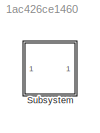
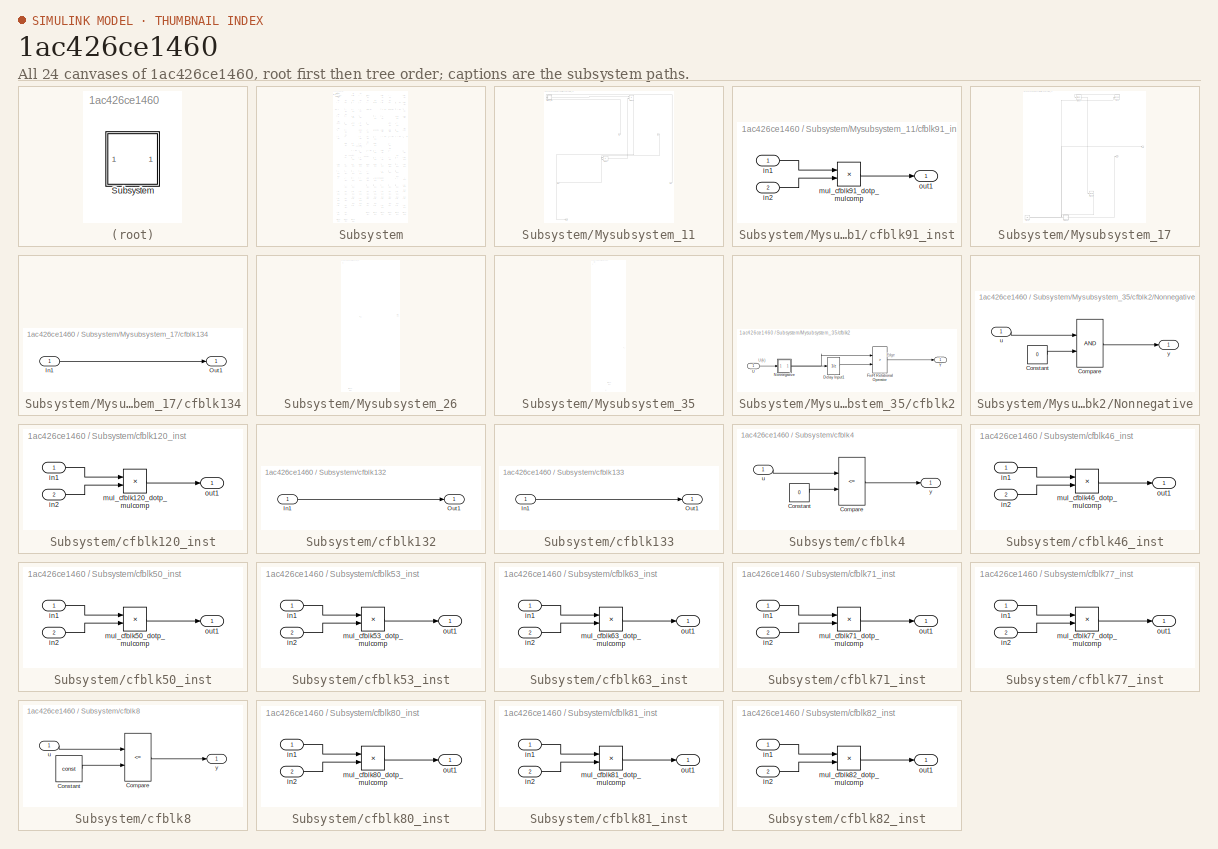
[diagram: thumbnail index - all 24 canvases of the model, root first then tree order]
MODEL slx_1ac426ce1460
KIND model
CONFIG AbsTol = auto
CONFIG EnableMultiTasking = off
CONFIG FixedStep = auto
CONFIG MaxStep = auto
CONFIG MinStep = auto
CONFIG RelTol = 1e-3
CONFIG SampleTimeConstraint = Unconstrained
CONFIG SolverName = VariableStepAuto
CONFIG StartTime = 0.0
CONFIG StopTime = 10.0
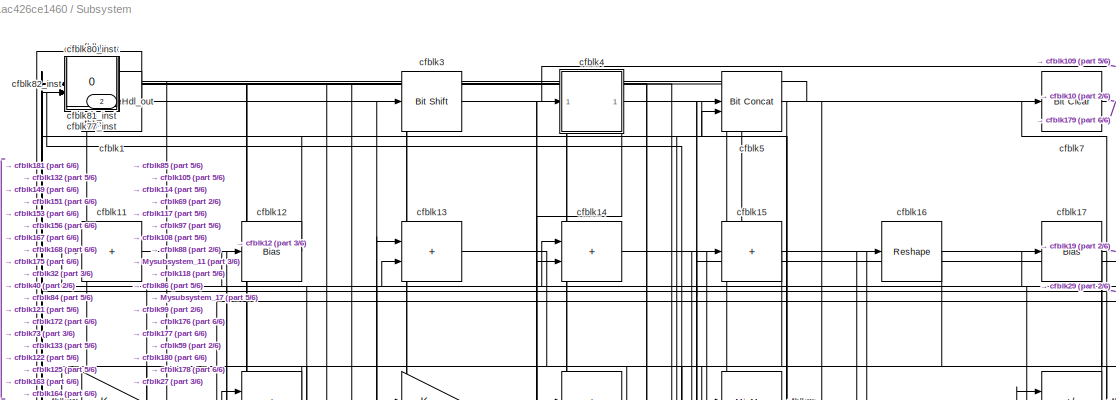
[diagram: Subsystem - part 1/6, top center region]
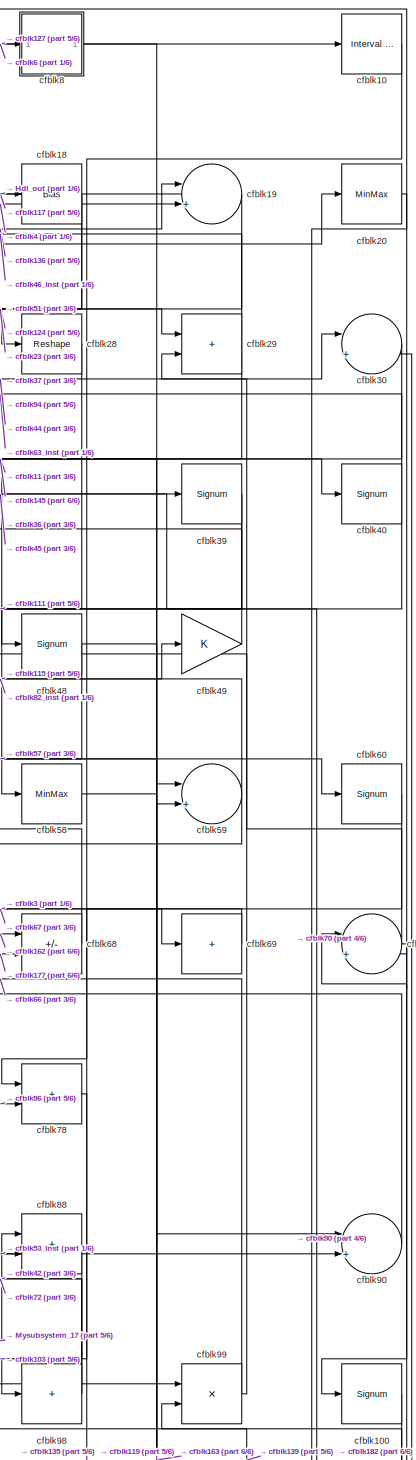
[diagram: Subsystem - part 2/6, top right region]
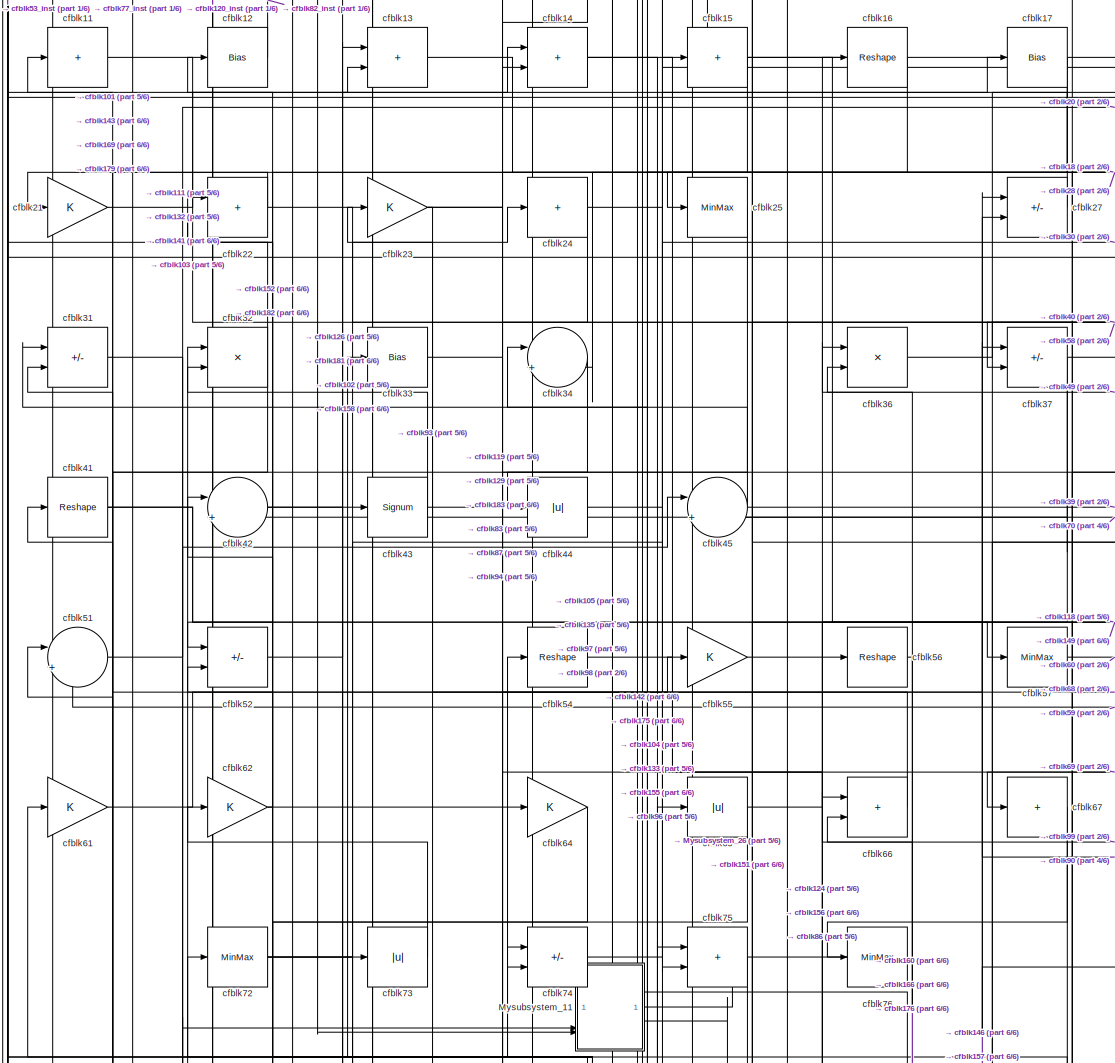
[diagram: Subsystem - part 3/6, top center region]
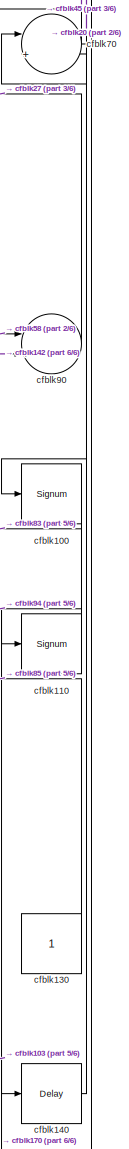
[diagram: Subsystem - part 4/6, middle right region]
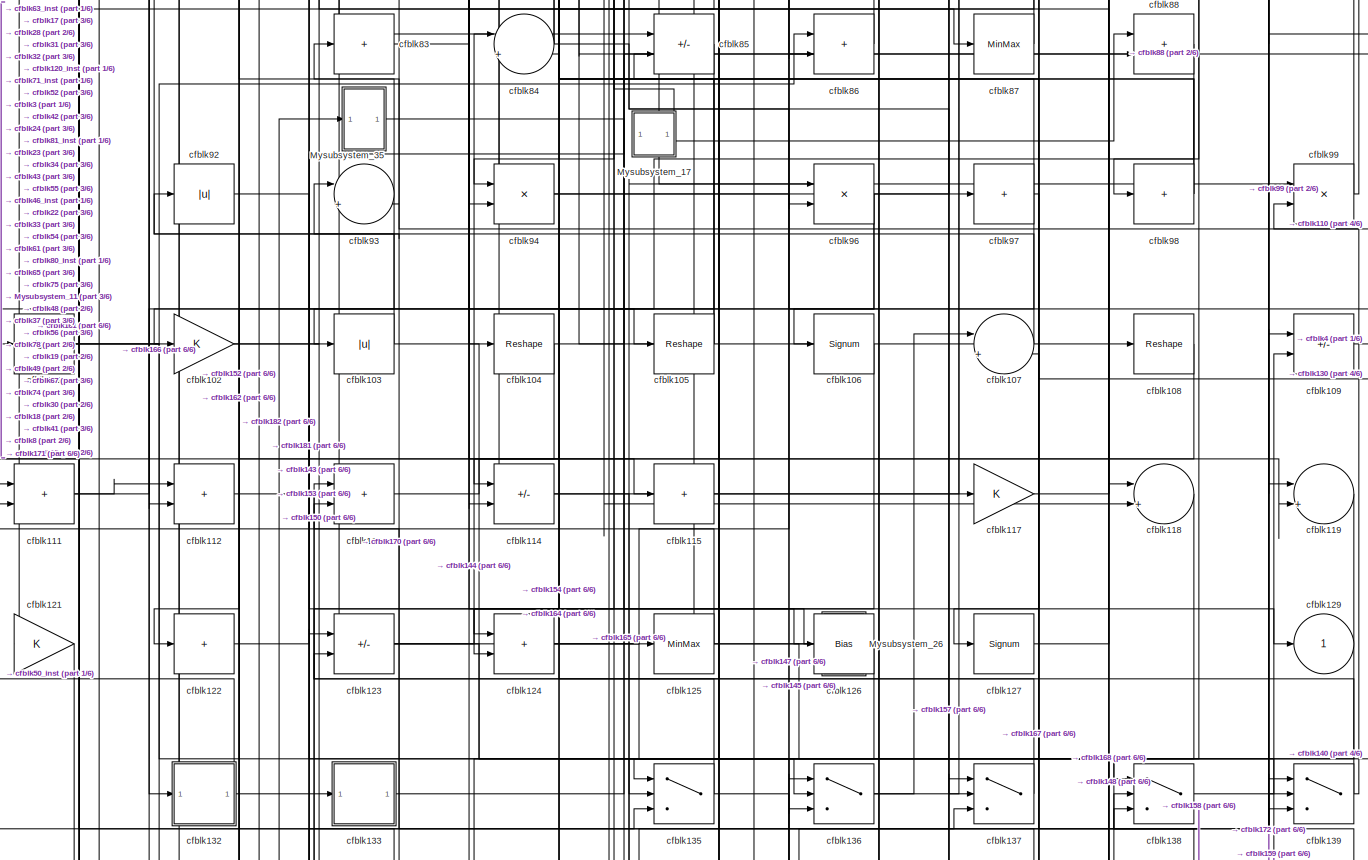
[diagram: Subsystem - part 5/6, full width, middle band]
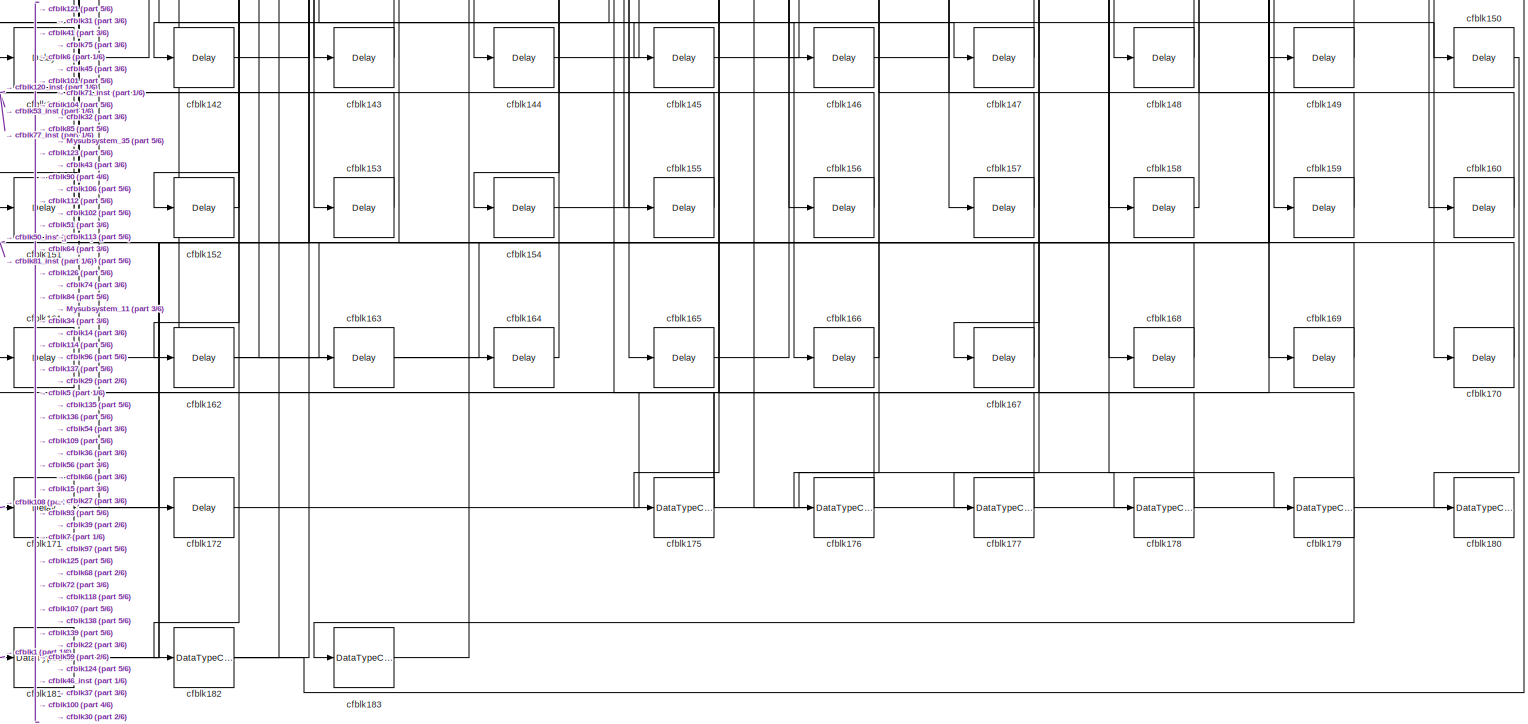
[diagram: Subsystem - part 6/6, full width, bottom band]
BLOCK [SubSystem] Subsystem
BLOCK [Outport] Subsystem/Hdl_out
  OutDataTypeStr = uint8
  Port = 2
  SampleTime = 1
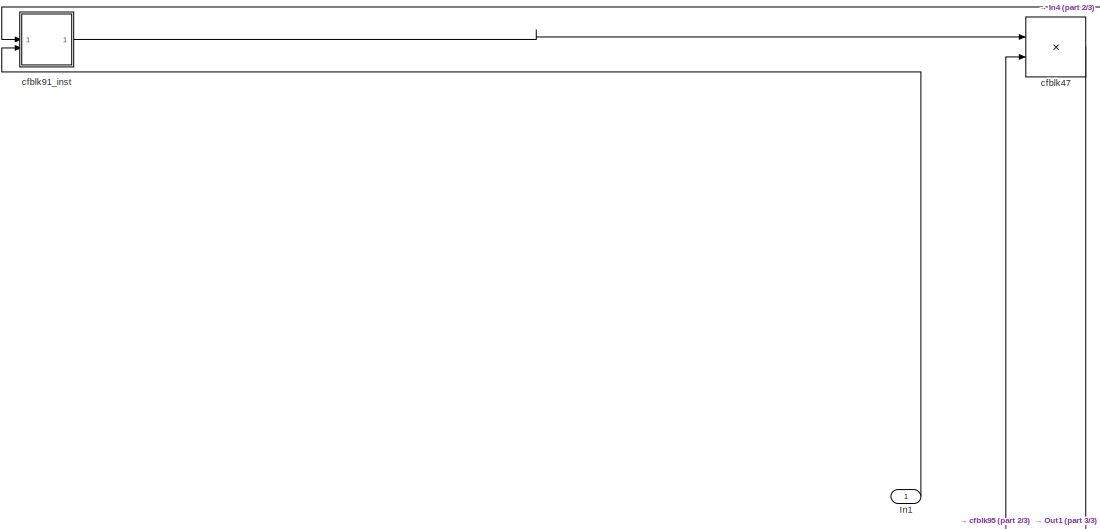
[diagram: Subsystem/Mysubsystem_11 - part 1/3, top center region]
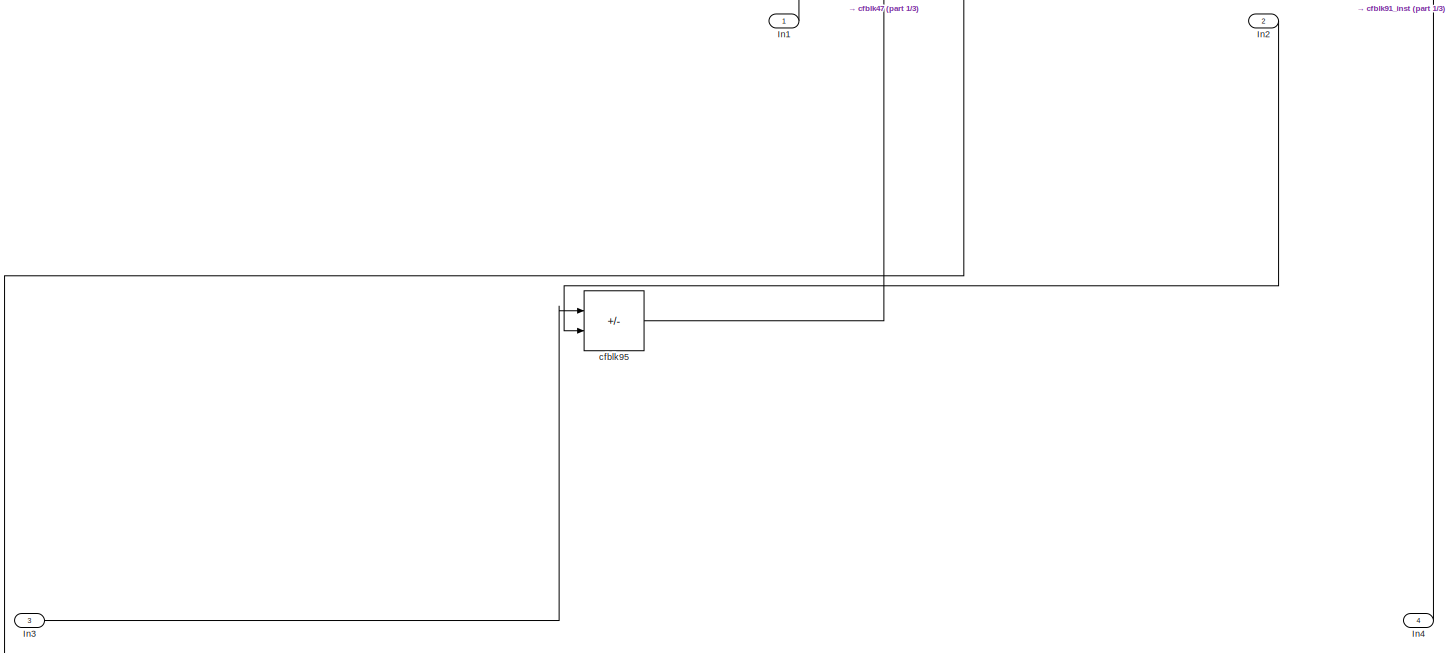
[diagram: Subsystem/Mysubsystem_11 - part 2/3, full width, middle band]
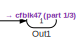
[diagram: Subsystem/Mysubsystem_11 - part 3/3, bottom left region]
BLOCK [SubSystem] Subsystem/Mysubsystem_11
BLOCK [Inport] Subsystem/Mysubsystem_11/In1
  OutDataTypeStr = uint8
  PortDimensions = 1
  SampleTime = 1
BLOCK [Inport] Subsystem/Mysubsystem_11/In2
  OutDataTypeStr = uint8
  Port = 2
  PortDimensions = 1
  SampleTime = 1
BLOCK [Inport] Subsystem/Mysubsystem_11/In3
  OutDataTypeStr = uint8
  Port = 3
  PortDimensions = 1
  SampleTime = 1
BLOCK [Inport] Subsystem/Mysubsystem_11/In4
  OutDataTypeStr = uint8
  Port = 4
  PortDimensions = 1
  SampleTime = 1
BLOCK [Outport] Subsystem/Mysubsystem_11/Out1
  SampleTime = 1
BLOCK [Product] Subsystem/Mysubsystem_11/cfblk47
  Inputs = */
  RndMeth = Zero
  SaturateOnIntegerOverflow = on
BLOCK [SubSystem] Subsystem/Mysubsystem_11/cfblk91_inst
BLOCK [Inport] Subsystem/Mysubsystem_11/cfblk91_inst/in1
  OutDataTypeStr = uint8
  SampleTime = 1
BLOCK [Inport] Subsystem/Mysubsystem_11/cfblk91_inst/in2
  OutDataTypeStr = uint8
  Port = 2
  SampleTime = 1
BLOCK [Product] Subsystem/Mysubsystem_11/cfblk91_inst/mul_cfblk91_dotp_mulcomp
  Inputs = **
  OutDataTypeStr = uint16
  SampleTime = 1
BLOCK [Outport] Subsystem/Mysubsystem_11/cfblk91_inst/out1
  OutDataTypeStr = uint16
  SampleTime = 1
BLOCK [Sum] Subsystem/Mysubsystem_11/cfblk95
  IconShape = rectangular
  Inputs = +-
BLOCK [SubSystem] Subsystem/Mysubsystem_17
BLOCK [Outport] Subsystem/Mysubsystem_17/Out1
  SampleTime = 1
BLOCK [Outport] Subsystem/Mysubsystem_17/Out2
  Port = 2
  SampleTime = 1
BLOCK [Signum] Subsystem/Mysubsystem_17/cfblk116
BLOCK [Ground] Subsystem/Mysubsystem_17/cfblk131
BLOCK [SubSystem] Subsystem/Mysubsystem_17/cfblk134
BLOCK [Inport] Subsystem/Mysubsystem_17/cfblk134/In1
  OutDataTypeStr = uint8
  PortDimensions = 1
  SampleTime = 1
BLOCK [Outport] Subsystem/Mysubsystem_17/cfblk134/Out1
  SampleTime = 1
BLOCK [MinMax] Subsystem/Mysubsystem_17/cfblk35
BLOCK [Reshape] Subsystem/Mysubsystem_17/cfblk38
BLOCK [SubSystem] Subsystem/Mysubsystem_26
BLOCK [Inport] Subsystem/Mysubsystem_26/In1
  OutDataTypeStr = boolean
  PortDimensions = 1
  SampleTime = 1
BLOCK [Outport] Subsystem/Mysubsystem_26/Out1
  SampleTime = 1
BLOCK [DataTypeConversion] Subsystem/Mysubsystem_26/cfblk173
  OutDataTypeStr = uint8
  RndMeth = Floor
  SaturateOnIntegerOverflow = off
BLOCK [Bias] Subsystem/Mysubsystem_26/cfblk79
  Bias = 0.0
  SaturateOnIntegerOverflow = off
BLOCK [SubSystem] Subsystem/Mysubsystem_35
BLOCK [Inport] Subsystem/Mysubsystem_35/In1
  OutDataTypeStr = uint8
  PortDimensions = 1
  SampleTime = 1
BLOCK [Outport] Subsystem/Mysubsystem_35/Y
  SampleTime = 1
BLOCK [DataTypeConversion] Subsystem/Mysubsystem_35/cfblk174
  OutDataTypeStr = uint8
  RndMeth = Floor
  SaturateOnIntegerOverflow = off
BLOCK [SubSystem] Subsystem/Mysubsystem_35/cfblk2
BLOCK [UnitDelay] Subsystem/Mysubsystem_35/cfblk2/Delay Input1
  Description = Store in Global RAM
  DisableCoverage = on
  HasFrameUpgradeWarning = on
  InitialCondition = vinit
  SampleTime = -1
BLOCK [RelationalOperator] Subsystem/Mysubsystem_35/cfblk2/FixPt Relational Operator
  InputSameDT = off
  Operator = >
  OutDataTypeStr = boolean
  ZeroCross = off
BLOCK [SubSystem] Subsystem/Mysubsystem_35/cfblk2/Nonnegative
BLOCK [RelationalOperator] Subsystem/Mysubsystem_35/cfblk2/Nonnegative/Compare
  OutDataTypeStr = boolean
  ZeroCross = off
BLOCK [Constant] Subsystem/Mysubsystem_35/cfblk2/Nonnegative/Constant
  DisableCoverage = on
  OutDataTypeStr = Inherit: Inherit via back propagation
  PreserveConstantTs = on
  SampleTime = -1
  Value = 0
BLOCK [Inport] Subsystem/Mysubsystem_35/cfblk2/Nonnegative/u
  OutDataTypeStr = uint8
  SampleTime = 1
BLOCK [Outport] Subsystem/Mysubsystem_35/cfblk2/Nonnegative/y
  SampleTime = 1
BLOCK [Inport] Subsystem/Mysubsystem_35/cfblk2/U
  OutDataTypeStr = uint8
  SampleTime = 1
BLOCK [Outport] Subsystem/Mysubsystem_35/cfblk2/Y
  SampleTime = 1
BLOCK [Reference] Subsystem/cfblk1  REF=simulink/Logic and Bit
Operations/Bit Clear
  LibrarySourceBlock = hdlsllib/Logic and Bit\nOperations/Bit Clear
  SourceBlock = simulink/Logic and Bit\nOperations/Bit Clear
  SourceType = Bit Clear
BLOCK [Reference] Subsystem/cfblk10  REF=hdlsllib/Logic and Bit
Operations/Interval Test
  SourceBlock = hdlsllib/Logic and Bit\nOperations/Interval Test
  SourceType = Interval Test
BLOCK [Signum] Subsystem/cfblk100
BLOCK [Signum] Subsystem/cfblk101
BLOCK [Gain] Subsystem/cfblk102
  OutDataTypeStr = uint8
BLOCK [Abs] Subsystem/cfblk103
  OutDataTypeStr = uint8
  SaturateOnIntegerOverflow = off
BLOCK [Reshape] Subsystem/cfblk104
BLOCK [Reshape] Subsystem/cfblk105
BLOCK [Signum] Subsystem/cfblk106
BLOCK [Sum] Subsystem/cfblk107
  Inputs = |++
  OutDataTypeStr = uint8
BLOCK [Reshape] Subsystem/cfblk108
BLOCK [Sum] Subsystem/cfblk109
  IconShape = rectangular
  Inputs = +-
  OutDataTypeStr = uint8
BLOCK [Sum] Subsystem/cfblk11
  IconShape = rectangular
  Inputs = +
  OutDataTypeStr = uint8
BLOCK [Signum] Subsystem/cfblk110
BLOCK [Sum] Subsystem/cfblk111
  IconShape = rectangular
  OutDataTypeStr = uint8
BLOCK [Sum] Subsystem/cfblk112
  IconShape = rectangular
  OutDataTypeStr = uint8
BLOCK [Sum] Subsystem/cfblk113
  IconShape = rectangular
  OutDataTypeStr = uint8
BLOCK [Sum] Subsystem/cfblk114
  IconShape = rectangular
  Inputs = +-
  OutDataTypeStr = uint8
BLOCK [Sum] Subsystem/cfblk115
  IconShape = rectangular
  Inputs = +
  OutDataTypeStr = uint8
BLOCK [Gain] Subsystem/cfblk117
  OutDataTypeStr = uint8
BLOCK [Sum] Subsystem/cfblk118
  Inputs = |++
  OutDataTypeStr = uint8
BLOCK [Sum] Subsystem/cfblk119
  Inputs = |++
  OutDataTypeStr = uint8
BLOCK [Bias] Subsystem/cfblk12
  Bias = 0.0
  SaturateOnIntegerOverflow = off
BLOCK [SubSystem] Subsystem/cfblk120_inst
BLOCK [Inport] Subsystem/cfblk120_inst/in1
  OutDataTypeStr = uint8
  SampleTime = 1
BLOCK [Inport] Subsystem/cfblk120_inst/in2
  OutDataTypeStr = uint8
  Port = 2
  SampleTime = 1
BLOCK [Product] Subsystem/cfblk120_inst/mul_cfblk120_dotp_mulcomp
  Inputs = **
  OutDataTypeStr = uint8
  SampleTime = 1
BLOCK [Outport] Subsystem/cfblk120_inst/out1
  OutDataTypeStr = uint8
  SampleTime = 1
BLOCK [Gain] Subsystem/cfblk121
  OutDataTypeStr = uint8
BLOCK [Sum] Subsystem/cfblk122
  IconShape = rectangular
  Inputs = +
  OutDataTypeStr = uint8
BLOCK [Sum] Subsystem/cfblk123
  IconShape = rectangular
  Inputs = +-
  OutDataTypeStr = uint8
BLOCK [Sum] Subsystem/cfblk124
  IconShape = rectangular
  OutDataTypeStr = uint8
BLOCK [MinMax] Subsystem/cfblk125
  OutDataTypeStr = uint8
BLOCK [Bias] Subsystem/cfblk126
  Bias = 0.0
  SaturateOnIntegerOverflow = off
BLOCK [Signum] Subsystem/cfblk127
BLOCK [Outport] Subsystem/cfblk129
  OutDataTypeStr = uint8
  SampleTime = 1
  VectorParamsAs1DForOutWhenUnconnected = off
BLOCK [Sum] Subsystem/cfblk13
  IconShape = rectangular
  OutDataTypeStr = uint8
BLOCK [Constant] Subsystem/cfblk130
  OutDataTypeStr = uint8
  SampleTime = -1
BLOCK [SubSystem] Subsystem/cfblk132
BLOCK [Inport] Subsystem/cfblk132/In1
  OutDataTypeStr = uint8
  PortDimensions = 1
  SampleTime = 1
BLOCK [Outport] Subsystem/cfblk132/Out1
  SampleTime = 1
BLOCK [SubSystem] Subsystem/cfblk133
BLOCK [Inport] Subsystem/cfblk133/In1
  OutDataTypeStr = uint8
  PortDimensions = 1
  SampleTime = 1
BLOCK [Outport] Subsystem/cfblk133/Out1
  SampleTime = 1
BLOCK [Switch] Subsystem/cfblk135
  InputSameDT = off
  OutDataTypeStr = uint8
  SaturateOnIntegerOverflow = off
BLOCK [Switch] Subsystem/cfblk136
  InputSameDT = off
  OutDataTypeStr = uint8
  SaturateOnIntegerOverflow = off
BLOCK [Switch] Subsystem/cfblk137
  InputSameDT = off
  OutDataTypeStr = uint8
  SaturateOnIntegerOverflow = off
BLOCK [Switch] Subsystem/cfblk138
  InputSameDT = off
  OutDataTypeStr = uint8
  SaturateOnIntegerOverflow = off
BLOCK [Switch] Subsystem/cfblk139
  InputSameDT = off
  OutDataTypeStr = uint8
  SaturateOnIntegerOverflow = off
BLOCK [Sum] Subsystem/cfblk14
  IconShape = rectangular
  OutDataTypeStr = uint8
BLOCK [Delay] Subsystem/cfblk140
  InputPortMap = u0
  SampleTime = 1
BLOCK [Delay] Subsystem/cfblk141
  InputPortMap = u0
  SampleTime = 1
BLOCK [Delay] Subsystem/cfblk142
  InputPortMap = u0
  SampleTime = 1
BLOCK [Delay] Subsystem/cfblk143
  InputPortMap = u0
  SampleTime = 1
BLOCK [Delay] Subsystem/cfblk144
  InputPortMap = u0
  SampleTime = 1
BLOCK [Delay] Subsystem/cfblk145
  InputPortMap = u0
  SampleTime = 1
BLOCK [Delay] Subsystem/cfblk146
  InputPortMap = u0
  SampleTime = 1
BLOCK [Delay] Subsystem/cfblk147
  InputPortMap = u0
  SampleTime = 1
BLOCK [Delay] Subsystem/cfblk148
  InputPortMap = u0
  SampleTime = 1
BLOCK [Delay] Subsystem/cfblk149
  InputPortMap = u0
  SampleTime = 1
BLOCK [Sum] Subsystem/cfblk15
  IconShape = rectangular
  Inputs = +
  OutDataTypeStr = uint8
BLOCK [Delay] Subsystem/cfblk150
  InputPortMap = u0
  SampleTime = 1
BLOCK [Delay] Subsystem/cfblk151
  InputPortMap = u0
  SampleTime = 1
BLOCK [Delay] Subsystem/cfblk152
  InputPortMap = u0
  SampleTime = 1
BLOCK [Delay] Subsystem/cfblk153
  InputPortMap = u0
  SampleTime = 1
BLOCK [Delay] Subsystem/cfblk154
  InputPortMap = u0
  SampleTime = 1
BLOCK [Delay] Subsystem/cfblk155
  InputPortMap = u0
  SampleTime = 1
BLOCK [Delay] Subsystem/cfblk156
  InputPortMap = u0
  SampleTime = 1
BLOCK [Delay] Subsystem/cfblk157
  InputPortMap = u0
  SampleTime = 1
BLOCK [Delay] Subsystem/cfblk158
  InputPortMap = u0
  SampleTime = 1
BLOCK [Delay] Subsystem/cfblk159
  InputPortMap = u0
  SampleTime = 1
BLOCK [Reshape] Subsystem/cfblk16
BLOCK [Delay] Subsystem/cfblk160
  InputPortMap = u0
  SampleTime = 1
BLOCK [Delay] Subsystem/cfblk161
  InputPortMap = u0
  SampleTime = 1
BLOCK [Delay] Subsystem/cfblk162
  InputPortMap = u0
  SampleTime = 1
BLOCK [Delay] Subsystem/cfblk163
  InputPortMap = u0
  SampleTime = 1
BLOCK [Delay] Subsystem/cfblk164
  InputPortMap = u0
  SampleTime = 1
BLOCK [Delay] Subsystem/cfblk165
  InputPortMap = u0
  SampleTime = 1
BLOCK [Delay] Subsystem/cfblk166
  InputPortMap = u0
  SampleTime = 1
BLOCK [Delay] Subsystem/cfblk167
  InputPortMap = u0
  SampleTime = 1
BLOCK [Delay] Subsystem/cfblk168
  InputPortMap = u0
  SampleTime = 1
BLOCK [Delay] Subsystem/cfblk169
  InputPortMap = u0
  SampleTime = 1
BLOCK [Bias] Subsystem/cfblk17
  Bias = 0.0
  SaturateOnIntegerOverflow = off
BLOCK [Delay] Subsystem/cfblk170
  InputPortMap = u0
  SampleTime = 1
BLOCK [Delay] Subsystem/cfblk171
  InputPortMap = u0
  SampleTime = 1
BLOCK [Delay] Subsystem/cfblk172
  InputPortMap = u0
  SampleTime = 1
BLOCK [DataTypeConversion] Subsystem/cfblk175
  OutDataTypeStr = uint8
  RndMeth = Floor
  SaturateOnIntegerOverflow = off
BLOCK [DataTypeConversion] Subsystem/cfblk176
  OutDataTypeStr = uint8
  RndMeth = Floor
  SaturateOnIntegerOverflow = off
BLOCK [DataTypeConversion] Subsystem/cfblk177
  OutDataTypeStr = uint8
  RndMeth = Floor
  SaturateOnIntegerOverflow = off
BLOCK [DataTypeConversion] Subsystem/cfblk178
  OutDataTypeStr = uint8
  RndMeth = Floor
  SaturateOnIntegerOverflow = off
BLOCK [DataTypeConversion] Subsystem/cfblk179
  OutDataTypeStr = uint8
  RndMeth = Floor
  SaturateOnIntegerOverflow = off
BLOCK [Bias] Subsystem/cfblk18
  Bias = 0.0
  SaturateOnIntegerOverflow = off
BLOCK [DataTypeConversion] Subsystem/cfblk180
  OutDataTypeStr = uint8
  RndMeth = Floor
  SaturateOnIntegerOverflow = off
BLOCK [DataTypeConversion] Subsystem/cfblk181
  OutDataTypeStr = uint8
  RndMeth = Floor
  SaturateOnIntegerOverflow = off
BLOCK [DataTypeConversion] Subsystem/cfblk182
  OutDataTypeStr = uint8
  RndMeth = Floor
  SaturateOnIntegerOverflow = off
BLOCK [DataTypeConversion] Subsystem/cfblk183
  OutDataTypeStr = uint8
  RndMeth = Floor
  SaturateOnIntegerOverflow = off
BLOCK [Sum] Subsystem/cfblk19
  Inputs = |++
  OutDataTypeStr = uint8
BLOCK [MinMax] Subsystem/cfblk20
  OutDataTypeStr = uint8
BLOCK [Gain] Subsystem/cfblk21
  OutDataTypeStr = uint8
BLOCK [Sum] Subsystem/cfblk22
  IconShape = rectangular
  OutDataTypeStr = uint8
BLOCK [Gain] Subsystem/cfblk23
  OutDataTypeStr = uint8
BLOCK [Sum] Subsystem/cfblk24
  IconShape = rectangular
  Inputs = +
  OutDataTypeStr = uint8
BLOCK [MinMax] Subsystem/cfblk25
  OutDataTypeStr = uint8
BLOCK [Sum] Subsystem/cfblk27
  IconShape = rectangular
  Inputs = +-
  OutDataTypeStr = uint8
BLOCK [Reshape] Subsystem/cfblk28
BLOCK [Sum] Subsystem/cfblk29
  IconShape = rectangular
  OutDataTypeStr = uint8
BLOCK [Reference] Subsystem/cfblk3  REF=hdlsllib/Logic and Bit
Operations/Bit Shift
  SourceBlock = hdlsllib/Logic and Bit\nOperations/Bit Shift
  SourceType = Bit Shift
BLOCK [Sum] Subsystem/cfblk30
  Inputs = |++
  OutDataTypeStr = uint8
BLOCK [Sum] Subsystem/cfblk31
  IconShape = rectangular
  Inputs = +-
  OutDataTypeStr = uint8
BLOCK [Product] Subsystem/cfblk32
  Inputs = */
  OutDataTypeStr = uint8
  RndMeth = Zero
  SaturateOnIntegerOverflow = on
BLOCK [Bias] Subsystem/cfblk33
  Bias = 0.0
  SaturateOnIntegerOverflow = off
BLOCK [Sum] Subsystem/cfblk34
  Inputs = |++
  OutDataTypeStr = uint8
BLOCK [Product] Subsystem/cfblk36
  Inputs = */
  OutDataTypeStr = uint8
  RndMeth = Zero
  SaturateOnIntegerOverflow = on
BLOCK [Sum] Subsystem/cfblk37
  IconShape = rectangular
  Inputs = +-
  OutDataTypeStr = uint8
BLOCK [Signum] Subsystem/cfblk39
BLOCK [SubSystem] Subsystem/cfblk4
BLOCK [RelationalOperator] Subsystem/cfblk4/Compare
  Operator = <=
  OutDataTypeStr = fixdt(0, 8)
BLOCK [Constant] Subsystem/cfblk4/Constant
  DisableCoverage = on
  OutDataTypeStr = Inherit: Inherit via back propagation
  PreserveConstantTs = on
  SampleTime = -1
  Value = 0
BLOCK [Inport] Subsystem/cfblk4/u
  OutDataTypeStr = uint8
  SampleTime = 1
BLOCK [Outport] Subsystem/cfblk4/y
  SampleTime = 1
BLOCK [Signum] Subsystem/cfblk40
BLOCK [Reshape] Subsystem/cfblk41
BLOCK [Sum] Subsystem/cfblk42
  Inputs = |++
  OutDataTypeStr = uint8
BLOCK [Signum] Subsystem/cfblk43
BLOCK [Abs] Subsystem/cfblk44
  OutDataTypeStr = uint8
  SaturateOnIntegerOverflow = off
BLOCK [Sum] Subsystem/cfblk45
  Inputs = |++
  OutDataTypeStr = uint8
BLOCK [SubSystem] Subsystem/cfblk46_inst
BLOCK [Inport] Subsystem/cfblk46_inst/in1
  OutDataTypeStr = uint8
  SampleTime = 1
BLOCK [Inport] Subsystem/cfblk46_inst/in2
  OutDataTypeStr = uint8
  Port = 2
  SampleTime = 1
BLOCK [Product] Subsystem/cfblk46_inst/mul_cfblk46_dotp_mulcomp
  Inputs = **
  OutDataTypeStr = uint8
  SampleTime = 1
BLOCK [Outport] Subsystem/cfblk46_inst/out1
  OutDataTypeStr = uint8
  SampleTime = 1
BLOCK [Signum] Subsystem/cfblk48
BLOCK [Gain] Subsystem/cfblk49
  OutDataTypeStr = uint8
BLOCK [Reference] Subsystem/cfblk5  REF=hdlsllib/Logic and Bit
Operations/Bit Concat
  SourceBlock = hdlsllib/Logic and Bit\nOperations/Bit Concat
  SourceType = Bit Concat
BLOCK [SubSystem] Subsystem/cfblk50_inst
BLOCK [Inport] Subsystem/cfblk50_inst/in1
  OutDataTypeStr = uint8
  SampleTime = 1
BLOCK [Inport] Subsystem/cfblk50_inst/in2
  OutDataTypeStr = uint8
  Port = 2
  SampleTime = 1
BLOCK [Product] Subsystem/cfblk50_inst/mul_cfblk50_dotp_mulcomp
  Inputs = **
  OutDataTypeStr = uint8
  SampleTime = 1
BLOCK [Outport] Subsystem/cfblk50_inst/out1
  OutDataTypeStr = uint8
  SampleTime = 1
BLOCK [Sum] Subsystem/cfblk51
  Inputs = |++
  OutDataTypeStr = uint8
BLOCK [Sum] Subsystem/cfblk52
  IconShape = rectangular
  Inputs = +-
  OutDataTypeStr = uint8
BLOCK [SubSystem] Subsystem/cfblk53_inst
BLOCK [Inport] Subsystem/cfblk53_inst/in1
  OutDataTypeStr = uint8
  SampleTime = 1
BLOCK [Inport] Subsystem/cfblk53_inst/in2
  OutDataTypeStr = uint8
  Port = 2
  SampleTime = 1
BLOCK [Product] Subsystem/cfblk53_inst/mul_cfblk53_dotp_mulcomp
  Inputs = **
  OutDataTypeStr = uint8
  SampleTime = 1
BLOCK [Outport] Subsystem/cfblk53_inst/out1
  OutDataTypeStr = uint8
  SampleTime = 1
BLOCK [Reshape] Subsystem/cfblk54
BLOCK [Gain] Subsystem/cfblk55
  OutDataTypeStr = uint8
BLOCK [Reshape] Subsystem/cfblk56
BLOCK [MinMax] Subsystem/cfblk57
  OutDataTypeStr = uint8
BLOCK [MinMax] Subsystem/cfblk58
  OutDataTypeStr = uint8
BLOCK [Sum] Subsystem/cfblk59
  Inputs = |++
  OutDataTypeStr = uint8
BLOCK [Constant] Subsystem/cfblk6
  OutDataTypeStr = uint8
  SampleTime = 1
  Value = 0
BLOCK [Signum] Subsystem/cfblk60
BLOCK [Gain] Subsystem/cfblk61
  OutDataTypeStr = uint8
BLOCK [Gain] Subsystem/cfblk62
  OutDataTypeStr = uint8
BLOCK [SubSystem] Subsystem/cfblk63_inst
BLOCK [Inport] Subsystem/cfblk63_inst/in1
  OutDataTypeStr = uint8
  SampleTime = 1
BLOCK [Inport] Subsystem/cfblk63_inst/in2
  OutDataTypeStr = uint8
  Port = 2
  SampleTime = 1
BLOCK [Product] Subsystem/cfblk63_inst/mul_cfblk63_dotp_mulcomp
  Inputs = **
  OutDataTypeStr = uint8
  SampleTime = 1
BLOCK [Outport] Subsystem/cfblk63_inst/out1
  OutDataTypeStr = uint8
  SampleTime = 1
BLOCK [Gain] Subsystem/cfblk64
  OutDataTypeStr = uint8
BLOCK [Abs] Subsystem/cfblk65
  OutDataTypeStr = uint8
  SaturateOnIntegerOverflow = off
BLOCK [Sum] Subsystem/cfblk66
  IconShape = rectangular
  OutDataTypeStr = uint8
BLOCK [Sum] Subsystem/cfblk67
  IconShape = rectangular
  Inputs = +
  OutDataTypeStr = uint8
BLOCK [Sum] Subsystem/cfblk68
  IconShape = rectangular
  Inputs = +-
  OutDataTypeStr = uint8
BLOCK [Sum] Subsystem/cfblk69
  IconShape = rectangular
  Inputs = +
  OutDataTypeStr = uint8
BLOCK [Reference] Subsystem/cfblk7  REF=simulink/Logic and Bit
Operations/Bit Clear
  LibrarySourceBlock = hdlsllib/Logic and Bit\nOperations/Bit Clear
  SourceBlock = simulink/Logic and Bit\nOperations/Bit Clear
  SourceType = Bit Clear
BLOCK [Sum] Subsystem/cfblk70
  Inputs = |++
  OutDataTypeStr = uint8
BLOCK [SubSystem] Subsystem/cfblk71_inst
BLOCK [Inport] Subsystem/cfblk71_inst/in1
  OutDataTypeStr = uint8
  SampleTime = 1
BLOCK [Inport] Subsystem/cfblk71_inst/in2
  OutDataTypeStr = uint8
  Port = 2
  SampleTime = 1
BLOCK [Product] Subsystem/cfblk71_inst/mul_cfblk71_dotp_mulcomp
  Inputs = **
  OutDataTypeStr = uint8
  SampleTime = 1
BLOCK [Outport] Subsystem/cfblk71_inst/out1
  OutDataTypeStr = uint8
  SampleTime = 1
BLOCK [MinMax] Subsystem/cfblk72
  OutDataTypeStr = uint8
BLOCK [Abs] Subsystem/cfblk73
  OutDataTypeStr = uint8
  SaturateOnIntegerOverflow = off
BLOCK [Sum] Subsystem/cfblk74
  IconShape = rectangular
  Inputs = +-
  OutDataTypeStr = uint8
BLOCK [Sum] Subsystem/cfblk75
  IconShape = rectangular
  OutDataTypeStr = uint8
BLOCK [MinMax] Subsystem/cfblk76
  OutDataTypeStr = uint8
BLOCK [SubSystem] Subsystem/cfblk77_inst
BLOCK [Inport] Subsystem/cfblk77_inst/in1
  OutDataTypeStr = uint8
  SampleTime = 1
BLOCK [Inport] Subsystem/cfblk77_inst/in2
  OutDataTypeStr = uint8
  Port = 2
  SampleTime = 1
BLOCK [Product] Subsystem/cfblk77_inst/mul_cfblk77_dotp_mulcomp
  Inputs = **
  OutDataTypeStr = uint8
  SampleTime = 1
BLOCK [Outport] Subsystem/cfblk77_inst/out1
  OutDataTypeStr = uint8
  SampleTime = 1
BLOCK [Sum] Subsystem/cfblk78
  IconShape = rectangular
  OutDataTypeStr = uint8
BLOCK [SubSystem] Subsystem/cfblk8
BLOCK [RelationalOperator] Subsystem/cfblk8/Compare
  Operator = <=
  OutDataTypeStr = fixdt(0, 8)
BLOCK [Constant] Subsystem/cfblk8/Constant
  DisableCoverage = on
  OutDataTypeStr = Inherit: Inherit via back propagation
  SampleTime = -1
  Value = const
BLOCK [Inport] Subsystem/cfblk8/u
  OutDataTypeStr = uint8
  SampleTime = 1
BLOCK [Outport] Subsystem/cfblk8/y
  SampleTime = 1
BLOCK [SubSystem] Subsystem/cfblk80_inst
BLOCK [Inport] Subsystem/cfblk80_inst/in1
  OutDataTypeStr = uint8
  SampleTime = 1
BLOCK [Inport] Subsystem/cfblk80_inst/in2
  OutDataTypeStr = uint8
  Port = 2
  SampleTime = 1
BLOCK [Product] Subsystem/cfblk80_inst/mul_cfblk80_dotp_mulcomp
  Inputs = **
  OutDataTypeStr = uint8
  SampleTime = 1
BLOCK [Outport] Subsystem/cfblk80_inst/out1
  OutDataTypeStr = uint8
  SampleTime = 1
BLOCK [SubSystem] Subsystem/cfblk81_inst
BLOCK [Inport] Subsystem/cfblk81_inst/in1
  OutDataTypeStr = uint8
  SampleTime = 1
BLOCK [Inport] Subsystem/cfblk81_inst/in2
  OutDataTypeStr = uint8
  Port = 2
  SampleTime = 1
BLOCK [Product] Subsystem/cfblk81_inst/mul_cfblk81_dotp_mulcomp
  Inputs = **
  OutDataTypeStr = uint8
  SampleTime = 1
BLOCK [Outport] Subsystem/cfblk81_inst/out1
  OutDataTypeStr = uint8
  SampleTime = 1
BLOCK [SubSystem] Subsystem/cfblk82_inst
BLOCK [Inport] Subsystem/cfblk82_inst/in1
  OutDataTypeStr = uint8
  SampleTime = 1
BLOCK [Inport] Subsystem/cfblk82_inst/in2
  OutDataTypeStr = uint8
  Port = 2
  SampleTime = 1
BLOCK [Product] Subsystem/cfblk82_inst/mul_cfblk82_dotp_mulcomp
  Inputs = **
  OutDataTypeStr = uint8
  SampleTime = 1
BLOCK [Outport] Subsystem/cfblk82_inst/out1
  OutDataTypeStr = uint8
  SampleTime = 1
BLOCK [Sum] Subsystem/cfblk83
  IconShape = rectangular
  Inputs = +
  OutDataTypeStr = uint8
BLOCK [Sum] Subsystem/cfblk84
  Inputs = |++
  OutDataTypeStr = uint8
BLOCK [Sum] Subsystem/cfblk85
  IconShape = rectangular
  Inputs = +-
  OutDataTypeStr = uint8
BLOCK [Sum] Subsystem/cfblk86
  IconShape = rectangular
  OutDataTypeStr = uint8
BLOCK [MinMax] Subsystem/cfblk87
  OutDataTypeStr = uint8
BLOCK [Sum] Subsystem/cfblk88
  IconShape = rectangular
  OutDataTypeStr = uint8
BLOCK [Constant] Subsystem/cfblk9
  OutDataTypeStr = uint8
  SampleTime = 1
  Value = 0
BLOCK [Sum] Subsystem/cfblk90
  Inputs = |++
  OutDataTypeStr = uint8
BLOCK [Abs] Subsystem/cfblk92
  OutDataTypeStr = uint8
  SaturateOnIntegerOverflow = off
BLOCK [Sum] Subsystem/cfblk93
  Inputs = |++
  OutDataTypeStr = uint8
BLOCK [Product] Subsystem/cfblk94
  Inputs = */
  OutDataTypeStr = uint8
  RndMeth = Zero
  SaturateOnIntegerOverflow = on
BLOCK [Product] Subsystem/cfblk96
  Inputs = */
  OutDataTypeStr = uint8
  RndMeth = Zero
  SaturateOnIntegerOverflow = on
BLOCK [Sum] Subsystem/cfblk97
  IconShape = rectangular
  Inputs = +
  OutDataTypeStr = uint8
BLOCK [Sum] Subsystem/cfblk98
  IconShape = rectangular
  Inputs = +
  OutDataTypeStr = uint8
BLOCK [Product] Subsystem/cfblk99
  Inputs = */
  OutDataTypeStr = uint8
  RndMeth = Zero
  SaturateOnIntegerOverflow = on
ANNOTATION Subsystem/Mysubsystem_35/cfblk2: Edge
ANNOTATION Subsystem/Mysubsystem_35/cfblk2: U(k)
LINE Subsystem/Mysubsystem_11/In1:1 -> Subsystem/Mysubsystem_11/cfblk91_inst:2
LINE Subsystem/Mysubsystem_11/In2:1 -> Subsystem/Mysubsystem_11/cfblk95:2
LINE Subsystem/Mysubsystem_11/In3:1 -> Subsystem/Mysubsystem_11/cfblk95:1
LINE Subsystem/Mysubsystem_11/In4:1 -> Subsystem/Mysubsystem_11/cfblk91_inst:1
LINE Subsystem/Mysubsystem_11/cfblk47:1 -> Subsystem/Mysubsystem_11/Out1:1
LINE Subsystem/Mysubsystem_11/cfblk91_inst/in1:1 -> Subsystem/Mysubsystem_11/cfblk91_inst/mul_cfblk91_dotp_mulcomp:1
LINE Subsystem/Mysubsystem_11/cfblk91_inst/in2:1 -> Subsystem/Mysubsystem_11/cfblk91_inst/mul_cfblk91_dotp_mulcomp:2
LINE Subsystem/Mysubsystem_11/cfblk91_inst/mul_cfblk91_dotp_mulcomp:1 -> Subsystem/Mysubsystem_11/cfblk91_inst/out1:1
LINE Subsystem/Mysubsystem_11/cfblk91_inst:1 -> Subsystem/Mysubsystem_11/cfblk47:1
LINE Subsystem/Mysubsystem_11/cfblk95:1 -> Subsystem/Mysubsystem_11/cfblk47:2
LINE Subsystem/Mysubsystem_11:1 -> Subsystem/cfblk142:1
LINE Subsystem/Mysubsystem_17/cfblk116:1 -> Subsystem/Mysubsystem_17/cfblk134:1
NET Subsystem/Mysubsystem_17/cfblk131:1 -> Subsystem/Mysubsystem_17/Out1:1, Subsystem/Mysubsystem_17/cfblk38:1
LINE Subsystem/Mysubsystem_17/cfblk134/In1:1 -> Subsystem/Mysubsystem_17/cfblk134/Out1:1
LINE Subsystem/Mysubsystem_17/cfblk134:1 -> Subsystem/Mysubsystem_17/Out2:1
LINE Subsystem/Mysubsystem_17/cfblk35:1 -> Subsystem/Mysubsystem_17/cfblk116:1
LINE Subsystem/Mysubsystem_17/cfblk38:1 -> Subsystem/Mysubsystem_17/cfblk35:1
LINE Subsystem/Mysubsystem_17:1 -> Subsystem/cfblk80_inst:2
LINE Subsystem/Mysubsystem_17:2 -> Subsystem/cfblk88:1
LINE Subsystem/Mysubsystem_26/In1:1 -> Subsystem/Mysubsystem_26/cfblk173:1
LINE Subsystem/Mysubsystem_26/cfblk173:1 -> Subsystem/Mysubsystem_26/cfblk79:1
LINE Subsystem/Mysubsystem_26/cfblk79:1 -> Subsystem/Mysubsystem_26/Out1:1
LINE Subsystem/Mysubsystem_26:1 -> Subsystem/Mysubsystem_11:2
LINE Subsystem/Mysubsystem_35/In1:1 -> Subsystem/Mysubsystem_35/cfblk174:1
LINE Subsystem/Mysubsystem_35/cfblk174:1 -> Subsystem/Mysubsystem_35/cfblk2:1
LINE Subsystem/Mysubsystem_35/cfblk2:1 -> Subsystem/Mysubsystem_35/Y:1
LINE Subsystem/Mysubsystem_35:1 -> Subsystem/Mysubsystem_26:1
LINE Subsystem/cfblk100:1 -> Subsystem/cfblk170:1
NET Subsystem/cfblk101:1 -> Subsystem/cfblk136:2, Subsystem/cfblk166:1, Subsystem/cfblk86:1
NET Subsystem/cfblk102:1 -> Subsystem/cfblk150:1, Subsystem/cfblk24:1
NET Subsystem/cfblk103:1 -> Subsystem/cfblk140:1, Subsystem/cfblk32:1
NET Subsystem/cfblk104:1 -> Subsystem/cfblk152:1, Subsystem/cfblk75:1
NET Subsystem/cfblk105:1 -> Subsystem/cfblk33:1, Subsystem/cfblk61:1
LINE Subsystem/cfblk106:1 -> Subsystem/cfblk153:1
LINE Subsystem/cfblk107:1 -> Subsystem/cfblk92:1
LINE Subsystem/cfblk108:1 -> Subsystem/cfblk171:1
LINE Subsystem/cfblk109:1 -> Subsystem/cfblk4:1
LINE Subsystem/cfblk10:1 -> Subsystem/cfblk135:1
LINE Subsystem/cfblk110:1 -> Subsystem/cfblk83:1
NET Subsystem/cfblk111:1 -> Subsystem/Mysubsystem_11:3, Subsystem/cfblk112:1
LINE Subsystem/cfblk112:1 -> Subsystem/cfblk143:1
LINE Subsystem/cfblk113:1 -> Subsystem/cfblk115:1
LINE Subsystem/cfblk114:1 -> Subsystem/cfblk165:1
LINE Subsystem/cfblk115:1 -> Subsystem/cfblk49:1
LINE Subsystem/cfblk117:1 -> Subsystem/cfblk18:1
LINE Subsystem/cfblk118:1 -> Subsystem/cfblk148:1
LINE Subsystem/cfblk119:1 -> Subsystem/cfblk144:1
LINE Subsystem/cfblk11:1 -> Subsystem/cfblk58:1
LINE Subsystem/cfblk120_inst/in1:1 -> Subsystem/cfblk120_inst/mul_cfblk120_dotp_mulcomp:1
LINE Subsystem/cfblk120_inst/in2:1 -> Subsystem/cfblk120_inst/mul_cfblk120_dotp_mulcomp:2
LINE Subsystem/cfblk120_inst/mul_cfblk120_dotp_mulcomp:1 -> Subsystem/cfblk120_inst/out1:1
NET Subsystem/cfblk120_inst:1 -> Subsystem/Mysubsystem_11:4, Subsystem/cfblk118:2, Subsystem/cfblk133:1
LINE Subsystem/cfblk121:1 -> Subsystem/cfblk161:1
LINE Subsystem/cfblk122:1 -> Subsystem/cfblk3:1
NET Subsystem/cfblk123:1 -> Subsystem/cfblk136:3, Subsystem/cfblk84:1
NET Subsystem/cfblk124:1 -> Subsystem/cfblk159:1, Subsystem/cfblk56:1
NET Subsystem/cfblk125:1 -> Subsystem/cfblk111:2, Subsystem/cfblk168:1
LINE Subsystem/cfblk126:1 -> Subsystem/cfblk154:1
LINE Subsystem/cfblk127:1 -> Subsystem/cfblk8:1
LINE Subsystem/cfblk12:1 -> Subsystem/cfblk82_inst:1
LINE Subsystem/cfblk130:1 -> Subsystem/cfblk85:2
LINE Subsystem/cfblk132/In1:1 -> Subsystem/cfblk132/Out1:1
LINE Subsystem/cfblk132:1 -> Subsystem/cfblk50_inst:1
LINE Subsystem/cfblk133/In1:1 -> Subsystem/cfblk133/Out1:1
LINE Subsystem/cfblk133:1 -> Subsystem/cfblk65:1
NET Subsystem/cfblk135:1 -> Subsystem/cfblk147:1, Subsystem/cfblk54:1
NET Subsystem/cfblk136:1 -> Subsystem/cfblk107:1, Subsystem/cfblk19:1
LINE Subsystem/cfblk137:1 -> Subsystem/cfblk113:1
LINE Subsystem/cfblk138:1 -> Subsystem/cfblk109:2
NET Subsystem/cfblk139:1 -> Subsystem/cfblk123:2, Subsystem/cfblk99:2
LINE Subsystem/cfblk13:1 -> Subsystem/cfblk75:2
LINE Subsystem/cfblk140:1 -> Subsystem/cfblk70:1
LINE Subsystem/cfblk141:1 -> Subsystem/cfblk45:1
LINE Subsystem/cfblk142:1 -> Subsystem/cfblk90:2
LINE Subsystem/cfblk143:1 -> Subsystem/cfblk51:1
LINE Subsystem/cfblk144:1 -> Subsystem/cfblk137:3
LINE Subsystem/cfblk145:1 -> Subsystem/cfblk109:1
LINE Subsystem/cfblk146:1 -> Subsystem/cfblk27:2
LINE Subsystem/cfblk147:1 -> Subsystem/cfblk93:1
LINE Subsystem/cfblk148:1 -> Subsystem/cfblk107:2
LINE Subsystem/cfblk149:1 -> Subsystem/cfblk46_inst:1
NET Subsystem/cfblk14:1 -> Subsystem/cfblk155:1, Subsystem/cfblk156:1
LINE Subsystem/cfblk150:1 -> Subsystem/cfblk180:1
LINE Subsystem/cfblk151:1 -> Subsystem/cfblk53_inst:2
LINE Subsystem/cfblk152:1 -> Subsystem/cfblk32:2
LINE Subsystem/cfblk153:1 -> Subsystem/cfblk77_inst:1
LINE Subsystem/cfblk154:1 -> Subsystem/cfblk96:1
LINE Subsystem/cfblk155:1 -> Subsystem/cfblk74:1
LINE Subsystem/cfblk156:1 -> Subsystem/cfblk120_inst:1
LINE Subsystem/cfblk157:1 -> Subsystem/cfblk137:1
LINE Subsystem/cfblk158:1 -> Subsystem/cfblk138:2
LINE Subsystem/cfblk159:1 -> Subsystem/cfblk138:3
NET Subsystem/cfblk15:1 -> Subsystem/cfblk157:1, Subsystem/cfblk52:1
LINE Subsystem/cfblk160:1 -> Subsystem/cfblk36:2
LINE Subsystem/cfblk161:1 -> Subsystem/cfblk123:1
LINE Subsystem/cfblk162:1 -> Subsystem/cfblk68:1
LINE Subsystem/cfblk163:1 -> Subsystem/cfblk59:2
LINE Subsystem/cfblk164:1 -> Subsystem/cfblk84:2
LINE Subsystem/cfblk165:1 -> Subsystem/cfblk136:1
LINE Subsystem/cfblk166:1 -> Subsystem/cfblk66:2
LINE Subsystem/cfblk167:1 -> Subsystem/cfblk50_inst:2
LINE Subsystem/cfblk168:1 -> Subsystem/cfblk81_inst:2
LINE Subsystem/cfblk169:1 -> Subsystem/cfblk31:2
LINE Subsystem/cfblk16:1 -> Subsystem/cfblk25:1
LINE Subsystem/cfblk170:1 -> Subsystem/cfblk113:2
LINE Subsystem/cfblk171:1 -> Subsystem/cfblk139:2
LINE Subsystem/cfblk172:1 -> Subsystem/cfblk139:1
NET Subsystem/cfblk175:1 -> Subsystem/cfblk120_inst:2, Subsystem/cfblk178:1, Subsystem/cfblk34:1
LINE Subsystem/cfblk176:1 -> Subsystem/cfblk5:1
LINE Subsystem/cfblk177:1 -> Subsystem/cfblk5:2
LINE Subsystem/cfblk178:1 -> Subsystem/cfblk7:1
NET Subsystem/cfblk179:1 -> Subsystem/cfblk183:1, Subsystem/cfblk41:1
NET Subsystem/cfblk17:1 -> Subsystem/cfblk101:1, Subsystem/cfblk34:2
LINE Subsystem/cfblk180:1 -> Subsystem/cfblk1:1
NET Subsystem/cfblk181:1 -> Subsystem/cfblk139:3, Subsystem/cfblk43:1
NET Subsystem/cfblk182:1 -> Subsystem/Mysubsystem_35:1, Subsystem/cfblk135:3, Subsystem/cfblk30:2
LINE Subsystem/cfblk183:1 -> Subsystem/cfblk64:1
NET Subsystem/cfblk18:1 -> Subsystem/cfblk124:2, Subsystem/cfblk37:2
NET Subsystem/cfblk19:1 -> Subsystem/Hdl_out:1, Subsystem/cfblk94:1
LINE Subsystem/cfblk1:1 -> Subsystem/cfblk181:1
LINE Subsystem/cfblk20:1 -> Subsystem/cfblk70:2
LINE Subsystem/cfblk21:1 -> Subsystem/cfblk13:2
NET Subsystem/cfblk22:1 -> Subsystem/cfblk169:1, Subsystem/cfblk21:1
NET Subsystem/cfblk23:1 -> Subsystem/cfblk119:2, Subsystem/cfblk28:1, Subsystem/cfblk93:2
NET Subsystem/cfblk24:1 -> Subsystem/cfblk104:1, Subsystem/cfblk96:2
LINE Subsystem/cfblk25:1 -> Subsystem/cfblk44:1
LINE Subsystem/cfblk27:1 -> Subsystem/cfblk53_inst:1
LINE Subsystem/cfblk28:1 -> Subsystem/cfblk111:1
NET Subsystem/cfblk29:1 -> Subsystem/cfblk145:1, Subsystem/cfblk46_inst:2
LINE Subsystem/cfblk30:1 -> Subsystem/cfblk127:1
LINE Subsystem/cfblk31:1 -> Subsystem/cfblk132:1
NET Subsystem/cfblk32:1 -> Subsystem/cfblk141:1, Subsystem/cfblk77_inst:2
LINE Subsystem/cfblk33:1 -> Subsystem/cfblk87:1
LINE Subsystem/cfblk34:1 -> Subsystem/cfblk94:2
LINE Subsystem/cfblk36:1 -> Subsystem/cfblk40:1
NET Subsystem/cfblk37:1 -> Subsystem/cfblk160:1, Subsystem/cfblk42:2, Subsystem/cfblk86:2
NET Subsystem/cfblk39:1 -> Subsystem/cfblk177:1, Subsystem/cfblk68:2
NET Subsystem/cfblk3:1 -> Subsystem/cfblk105:1, Subsystem/cfblk69:1
NET Subsystem/cfblk40:1 -> Subsystem/cfblk48:1, Subsystem/cfblk63_inst:2
NET Subsystem/cfblk41:1 -> Subsystem/cfblk118:1, Subsystem/cfblk149:1
NET Subsystem/cfblk42:1 -> Subsystem/cfblk126:1, Subsystem/cfblk14:1
NET Subsystem/cfblk43:1 -> Subsystem/cfblk129:1, Subsystem/cfblk22:1
LINE Subsystem/cfblk44:1 -> Subsystem/cfblk30:1
NET Subsystem/cfblk45:1 -> Subsystem/cfblk31:1, Subsystem/cfblk39:1
LINE Subsystem/cfblk46_inst/in1:1 -> Subsystem/cfblk46_inst/mul_cfblk46_dotp_mulcomp:1
LINE Subsystem/cfblk46_inst/in2:1 -> Subsystem/cfblk46_inst/mul_cfblk46_dotp_mulcomp:2
LINE Subsystem/cfblk46_inst/mul_cfblk46_dotp_mulcomp:1 -> Subsystem/cfblk46_inst/out1:1
LINE Subsystem/cfblk46_inst:1 -> Subsystem/cfblk117:1
NET Subsystem/cfblk48:1 -> Subsystem/cfblk135:2, Subsystem/cfblk59:1
LINE Subsystem/cfblk49:1 -> Subsystem/cfblk36:1
NET Subsystem/cfblk4:1 -> Subsystem/cfblk114:2, Subsystem/cfblk19:2, Subsystem/cfblk29:1
LINE Subsystem/cfblk50_inst/in1:1 -> Subsystem/cfblk50_inst/mul_cfblk50_dotp_mulcomp:1
LINE Subsystem/cfblk50_inst/in2:1 -> Subsystem/cfblk50_inst/mul_cfblk50_dotp_mulcomp:2
LINE Subsystem/cfblk50_inst/mul_cfblk50_dotp_mulcomp:1 -> Subsystem/cfblk50_inst/out1:1
LINE Subsystem/cfblk50_inst:1 -> Subsystem/cfblk97:1
LINE Subsystem/cfblk51:1 -> Subsystem/cfblk20:1
LINE Subsystem/cfblk52:1 -> Subsystem/cfblk13:1
LINE Subsystem/cfblk53_inst/in1:1 -> Subsystem/cfblk53_inst/mul_cfblk53_dotp_mulcomp:1
LINE Subsystem/cfblk53_inst/in2:1 -> Subsystem/cfblk53_inst/mul_cfblk53_dotp_mulcomp:2
LINE Subsystem/cfblk53_inst/mul_cfblk53_dotp_mulcomp:1 -> Subsystem/cfblk53_inst/out1:1
LINE Subsystem/cfblk53_inst:1 -> Subsystem/cfblk88:2
LINE Subsystem/cfblk54:1 -> Subsystem/cfblk146:1
LINE Subsystem/cfblk55:1 -> Subsystem/cfblk57:1
LINE Subsystem/cfblk56:1 -> Subsystem/cfblk176:1
LINE Subsystem/cfblk57:1 -> Subsystem/cfblk60:1
LINE Subsystem/cfblk58:1 -> Subsystem/cfblk90:1
NET Subsystem/cfblk59:1 -> Subsystem/cfblk51:2, Subsystem/cfblk82_inst:2
LINE Subsystem/cfblk5:1 -> Subsystem/cfblk175:1
LINE Subsystem/cfblk60:1 -> Subsystem/cfblk78:1
LINE Subsystem/cfblk61:1 -> Subsystem/cfblk37:1
NET Subsystem/cfblk62:1 -> Subsystem/cfblk12:1, Subsystem/cfblk14:2
LINE Subsystem/cfblk63_inst/in1:1 -> Subsystem/cfblk63_inst/mul_cfblk63_dotp_mulcomp:1
LINE Subsystem/cfblk63_inst/in2:1 -> Subsystem/cfblk63_inst/mul_cfblk63_dotp_mulcomp:2
LINE Subsystem/cfblk63_inst/mul_cfblk63_dotp_mulcomp:1 -> Subsystem/cfblk63_inst/out1:1
NET Subsystem/cfblk63_inst:1 -> Subsystem/cfblk121:1, Subsystem/cfblk71_inst:2
LINE Subsystem/cfblk64:1 -> Subsystem/cfblk182:1
NET Subsystem/cfblk65:1 -> Subsystem/cfblk102:1, Subsystem/cfblk16:1
LINE Subsystem/cfblk66:1 -> Subsystem/cfblk23:1
NET Subsystem/cfblk67:1 -> Subsystem/cfblk124:1, Subsystem/cfblk76:1
LINE Subsystem/cfblk68:1 -> Subsystem/cfblk11:1
LINE Subsystem/cfblk69:1 -> Subsystem/cfblk67:1
NET Subsystem/cfblk6:1 -> Subsystem/cfblk10:1, Subsystem/cfblk172:1
NET Subsystem/cfblk70:1 -> Subsystem/cfblk100:1, Subsystem/cfblk45:2
LINE Subsystem/cfblk71_inst/in1:1 -> Subsystem/cfblk71_inst/mul_cfblk71_dotp_mulcomp:1
LINE Subsystem/cfblk71_inst/in2:1 -> Subsystem/cfblk71_inst/mul_cfblk71_dotp_mulcomp:2
LINE Subsystem/cfblk71_inst/mul_cfblk71_dotp_mulcomp:1 -> Subsystem/cfblk71_inst/out1:1
NET Subsystem/cfblk71_inst:1 -> Subsystem/cfblk163:1, Subsystem/cfblk164:1, Subsystem/cfblk85:1
NET Subsystem/cfblk72:1 -> Subsystem/cfblk158:1, Subsystem/cfblk15:1
LINE Subsystem/cfblk73:1 -> Subsystem/cfblk62:1
LINE Subsystem/cfblk74:1 -> Subsystem/cfblk17:1
LINE Subsystem/cfblk75:1 -> Subsystem/cfblk151:1
LINE Subsystem/cfblk76:1 -> Subsystem/Mysubsystem_11:1
LINE Subsystem/cfblk77_inst/in1:1 -> Subsystem/cfblk77_inst/mul_cfblk77_dotp_mulcomp:1
LINE Subsystem/cfblk77_inst/in2:1 -> Subsystem/cfblk77_inst/mul_cfblk77_dotp_mulcomp:2
LINE Subsystem/cfblk77_inst/mul_cfblk77_dotp_mulcomp:1 -> Subsystem/cfblk77_inst/out1:1
LINE Subsystem/cfblk77_inst:1 -> Subsystem/cfblk73:1
LINE Subsystem/cfblk78:1 -> Subsystem/cfblk98:1
LINE Subsystem/cfblk7:1 -> Subsystem/cfblk179:1
LINE Subsystem/cfblk80_inst/in1:1 -> Subsystem/cfblk80_inst/mul_cfblk80_dotp_mulcomp:1
LINE Subsystem/cfblk80_inst/in2:1 -> Subsystem/cfblk80_inst/mul_cfblk80_dotp_mulcomp:2
LINE Subsystem/cfblk80_inst/mul_cfblk80_dotp_mulcomp:1 -> Subsystem/cfblk80_inst/out1:1
LINE Subsystem/cfblk80_inst:1 -> Subsystem/cfblk108:1
LINE Subsystem/cfblk81_inst/in1:1 -> Subsystem/cfblk81_inst/mul_cfblk81_dotp_mulcomp:1
LINE Subsystem/cfblk81_inst/in2:1 -> Subsystem/cfblk81_inst/mul_cfblk81_dotp_mulcomp:2
LINE Subsystem/cfblk81_inst/mul_cfblk81_dotp_mulcomp:1 -> Subsystem/cfblk81_inst/out1:1
LINE Subsystem/cfblk81_inst:1 -> Subsystem/cfblk125:1
LINE Subsystem/cfblk82_inst/in1:1 -> Subsystem/cfblk82_inst/mul_cfblk82_dotp_mulcomp:1
LINE Subsystem/cfblk82_inst/in2:1 -> Subsystem/cfblk82_inst/mul_cfblk82_dotp_mulcomp:2
LINE Subsystem/cfblk82_inst/mul_cfblk82_dotp_mulcomp:1 -> Subsystem/cfblk82_inst/out1:1
LINE Subsystem/cfblk82_inst:1 -> Subsystem/cfblk99:1
LINE Subsystem/cfblk83:1 -> Subsystem/cfblk55:1
NET Subsystem/cfblk84:1 -> Subsystem/cfblk137:2, Subsystem/cfblk71_inst:1, Subsystem/cfblk80_inst:1
LINE Subsystem/cfblk85:1 -> Subsystem/cfblk162:1
LINE Subsystem/cfblk86:1 -> Subsystem/cfblk63_inst:1
LINE Subsystem/cfblk87:1 -> Subsystem/cfblk74:2
LINE Subsystem/cfblk88:1 -> Subsystem/cfblk103:1
LINE Subsystem/cfblk8:1 -> Subsystem/cfblk119:1
LINE Subsystem/cfblk90:1 -> Subsystem/cfblk27:1
LINE Subsystem/cfblk92:1 -> Subsystem/cfblk138:1
NET Subsystem/cfblk93:1 -> Subsystem/cfblk122:1, Subsystem/cfblk52:2
LINE Subsystem/cfblk94:1 -> Subsystem/cfblk110:1
NET Subsystem/cfblk96:1 -> Subsystem/cfblk106:1, Subsystem/cfblk112:2, Subsystem/cfblk78:2
NET Subsystem/cfblk97:1 -> Subsystem/cfblk114:1, Subsystem/cfblk167:1, Subsystem/cfblk22:2
NET Subsystem/cfblk98:1 -> Subsystem/cfblk42:1, Subsystem/cfblk72:1
NET Subsystem/cfblk99:1 -> Subsystem/cfblk29:2, Subsystem/cfblk66:1
LINE Subsystem/cfblk9:1 -> Subsystem/cfblk81_inst:1
note: NET lines group one-source signal fan-out (src -> all destinations, sorted); 1:1 wires keep LINE
